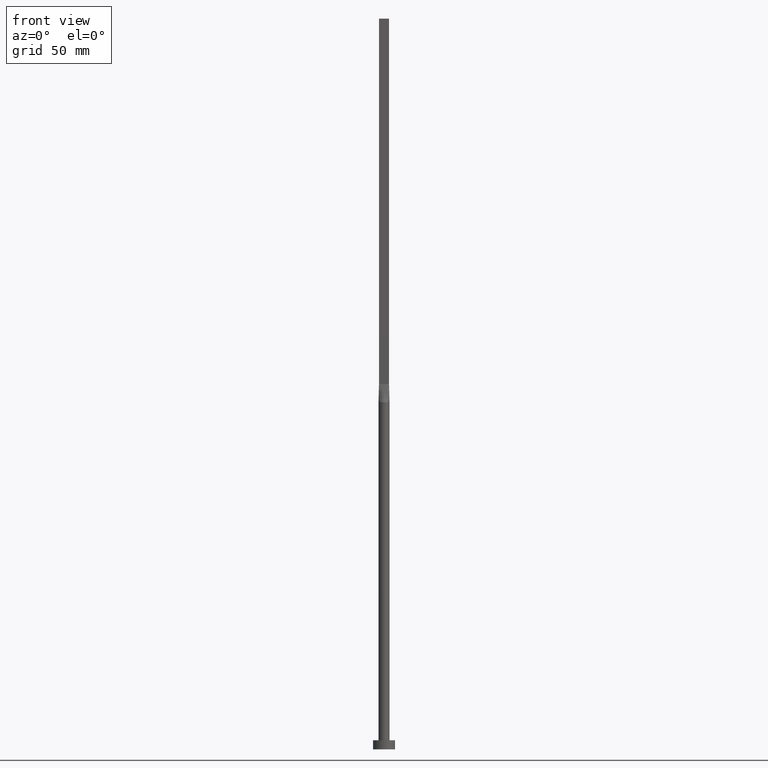
[diagram: clean part render]
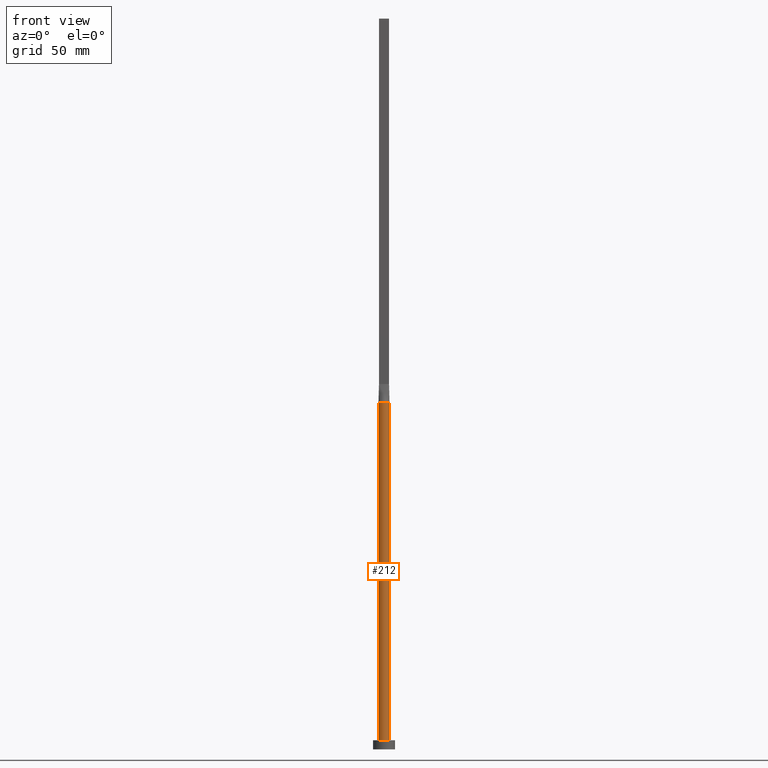
[diagram: same view with one face highlighted and labeled with its STEP entity id]
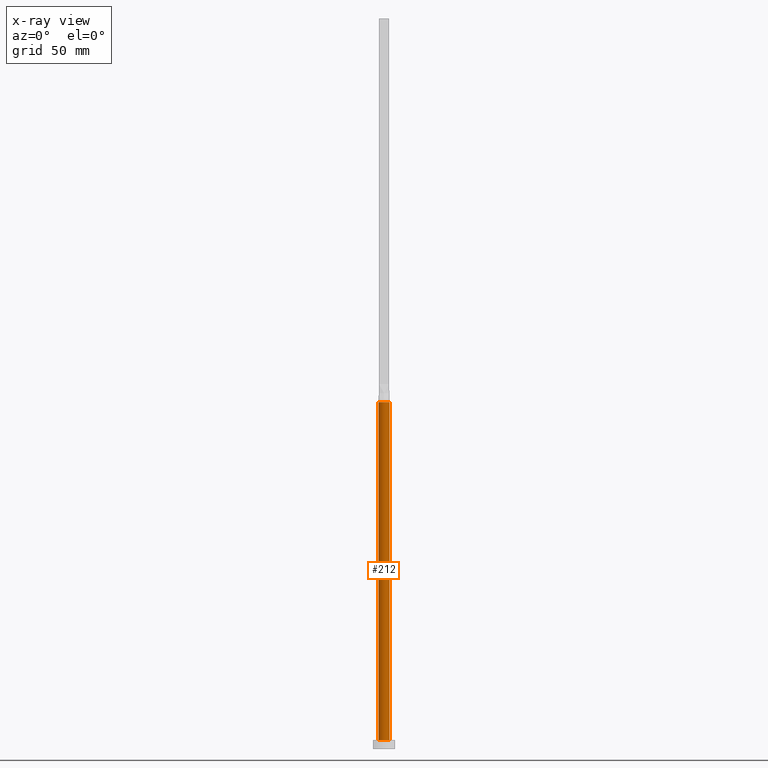
[diagram: x-ray of the same camera — body ghosted, the highlighted face saturated]
A machine part, front view. The second image highlights one B-rep face of the part: STEP entity #212.
The next image is the same camera in x-ray: the body ghosted, the highlighted face saturated — about 0% of this face is hidden behind the body in this view.
In plain terms, the highlighted cylindrical surface (edge-blend (fillet) strip) has radius 3 mm, axis along (-0, -0, -1).
Its self-contained STEP definition (entity closure, byte-faithful):
#18 = EDGE_CURVE ( 'NONE', #446, #440, #275, .T. ) ;
#35 = AXIS2_PLACEMENT_3D ( 'NONE', #215, #164, #86 ) ;
#64 = DIRECTION ( 'NONE',  ( -0.000000000000000000, -0.000000000000000000, -1.000000000000000000 ) ) ;
#65 = VERTEX_POINT ( 'NONE', #315 ) ;
#67 = ORIENTED_EDGE ( 'NONE', *, *, #18, .T. ) ;
#73 = AXIS2_PLACEMENT_3D ( 'NONE', #179, #532, #312 ) ;
#76 = DIRECTION ( 'NONE',  ( 1.000000000000000000, 0.000000000000000000, 0.000000000000000000 ) ) ;
#86 = DIRECTION ( 'NONE',  ( 1.000000000000000000, 0.000000000000000000, 0.000000000000000000 ) ) ;
#87 = EDGE_CURVE ( 'NONE', #440, #349, #169, .T. ) ;
#93 = CARTESIAN_POINT ( 'NONE',  ( 0.000000000000000000, 0.000000000000000000, 5.000000000000000000 ) ) ;
#94 = ORIENTED_EDGE ( 'NONE', *, *, #429, .F. ) ;
#119 = EDGE_CURVE ( 'NONE', #450, #65, #379, .T. ) ;
#121 = DIRECTION ( 'NONE',  ( -0.000000000000000000, -0.000000000000000000, -1.000000000000000000 ) ) ;
#132 = DIRECTION ( 'NONE',  ( 1.000000000000000000, 0.000000000000000000, 0.000000000000000000 ) ) ;
#139 = EDGE_LOOP ( 'NONE', ( #217, #467, #94, #243, #67, #272 ) ) ;
#141 = CARTESIAN_POINT ( 'NONE',  ( -3.000000000000000444, 0.000000000000000000, 190.0000000000000000 ) ) ;
#148 = DIRECTION ( 'NONE',  ( -1.000000000000000000, 0.000000000000000000, 0.000000000000000000 ) ) ;
#164 = DIRECTION ( 'NONE',  ( 0.000000000000000000, 0.000000000000000000, 1.000000000000000000 ) ) ;
#169 = CIRCLE ( 'NONE', #395, 3.000000000000000444 ) ;
#178 = AXIS2_PLACEMENT_3D ( 'NONE', #194, #549, #76 ) ;
#179 = CARTESIAN_POINT ( 'NONE',  ( 0.000000000000000000, 0.000000000000000000, 190.0000000000000000 ) ) ;
#188 = FACE_OUTER_BOUND ( 'NONE', #139, .T. ) ;
#194 = CARTESIAN_POINT ( 'NONE',  ( 0.000000000000000000, 0.000000000000000000, 190.0000000000000000 ) ) ;
#212 = ADVANCED_FACE ( 'NONE', ( #188 ), #509, .T. ) ;
#215 = CARTESIAN_POINT ( 'NONE',  ( 0.000000000000000000, 0.000000000000000000, 190.0000000000000000 ) ) ;
#217 = ORIENTED_EDGE ( 'NONE', *, *, #454, .F. ) ;
#243 = ORIENTED_EDGE ( 'NONE', *, *, #251, .F. ) ;
#251 = EDGE_CURVE ( 'NONE', #446, #506, #571, .T. ) ;
#263 = CIRCLE ( 'NONE', #178, 3.000000000000000444 ) ;
#272 = ORIENTED_EDGE ( 'NONE', *, *, #87, .T. ) ;
#275 = LINE ( 'NONE', #141, #535 ) ;
#303 = CARTESIAN_POINT ( 'NONE',  ( 3.000000000000000444, 3.673940397442060361E-16, 190.0000000000000000 ) ) ;
#312 = DIRECTION ( 'NONE',  ( 1.000000000000000000, -5.329070518200751394E-15, 0.000000000000000000 ) ) ;
#315 = CARTESIAN_POINT ( 'NONE',  ( 3.000000000000000888, 4.817174831141495148E-17, 190.0000000000000284 ) ) ;
#319 = DIRECTION ( 'NONE',  ( 0.000000000000000000, 0.000000000000000000, 1.000000000000000000 ) ) ;
#349 = VERTEX_POINT ( 'NONE', #373 ) ;
#373 = CARTESIAN_POINT ( 'NONE',  ( 3.000000000000000444, 3.673940397442060361E-16, 5.000000000000000000 ) ) ;
#379 = CIRCLE ( 'NONE', #73, 3.000000000000000444 ) ;
#386 = CARTESIAN_POINT ( 'NONE',  ( -3.000000000000000000, -1.912111867153115409E-16, 190.0000000000000284 ) ) ;
#395 = AXIS2_PLACEMENT_3D ( 'NONE', #93, #319, #132 ) ;
#419 = CARTESIAN_POINT ( 'NONE',  ( 0.000000000000000000, 0.000000000000000000, 190.0000000000000000 ) ) ;
#429 = EDGE_CURVE ( 'NONE', #506, #450, #263, .T. ) ;
#440 = VERTEX_POINT ( 'NONE', #559 ) ;
#446 = VERTEX_POINT ( 'NONE', #386 ) ;
#450 = VERTEX_POINT ( 'NONE', #519 ) ;
#454 = EDGE_CURVE ( 'NONE', #65, #349, #578, .T. ) ;
#461 = VECTOR ( 'NONE', #121, 1000.000000000000000 ) ;
#467 = ORIENTED_EDGE ( 'NONE', *, *, #119, .F. ) ;
#485 = CARTESIAN_POINT ( 'NONE',  ( -2.894489875237701959, -0.7894071376467488577, 190.0000000000000000 ) ) ;
#492 = DIRECTION ( 'NONE',  ( -0.000000000000000000, -0.000000000000000000, -1.000000000000000000 ) ) ;
#497 = AXIS2_PLACEMENT_3D ( 'NONE', #419, #64, #148 ) ;
#506 = VERTEX_POINT ( 'NONE', #485 ) ;
#509 = CYLINDRICAL_SURFACE ( 'NONE', #497, 3.000000000000000444 ) ;
#519 = CARTESIAN_POINT ( 'NONE',  ( 2.894514141151844910, -0.7894138151126538494, 190.0000000000000000 ) ) ;
#532 = DIRECTION ( 'NONE',  ( 0.000000000000000000, 0.000000000000000000, 1.000000000000000000 ) ) ;
#535 = VECTOR ( 'NONE', #492, 1000.000000000000000 ) ;
#549 = DIRECTION ( 'NONE',  ( 0.000000000000000000, 0.000000000000000000, 1.000000000000000000 ) ) ;
#559 = CARTESIAN_POINT ( 'NONE',  ( -3.000000000000000444, 0.000000000000000000, 5.000000000000000000 ) ) ;
#571 = CIRCLE ( 'NONE', #35, 3.000000000000000444 ) ;
#578 = LINE ( 'NONE', #303, #461 ) ;